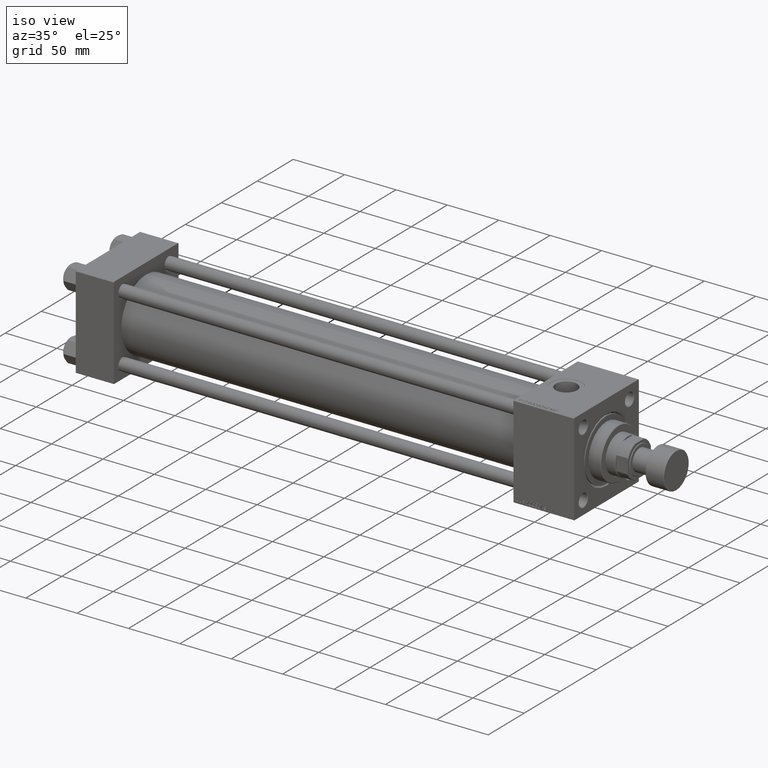
[diagram: clean part render]
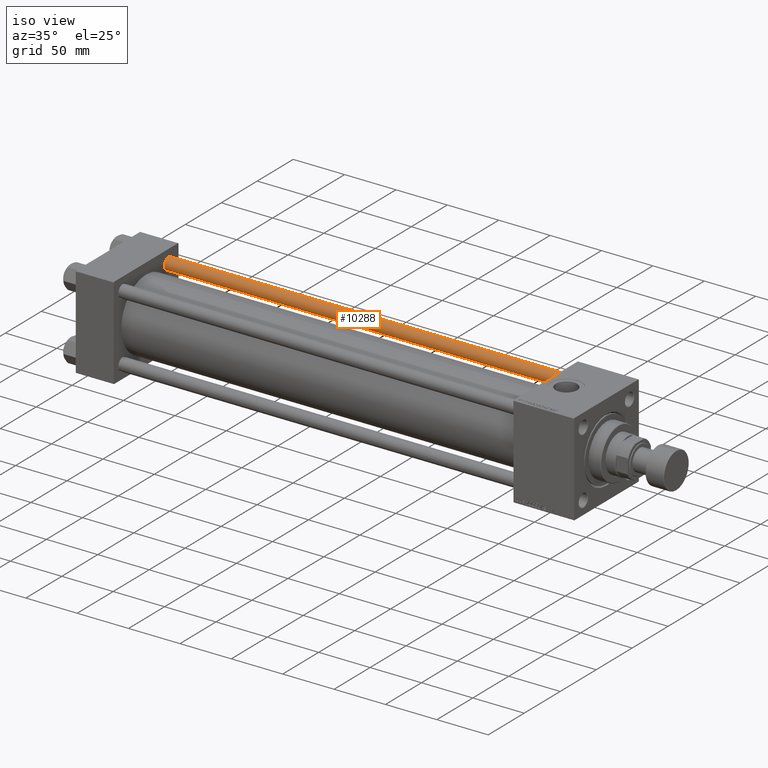
[diagram: same view with one face highlighted and labeled with its STEP entity id]
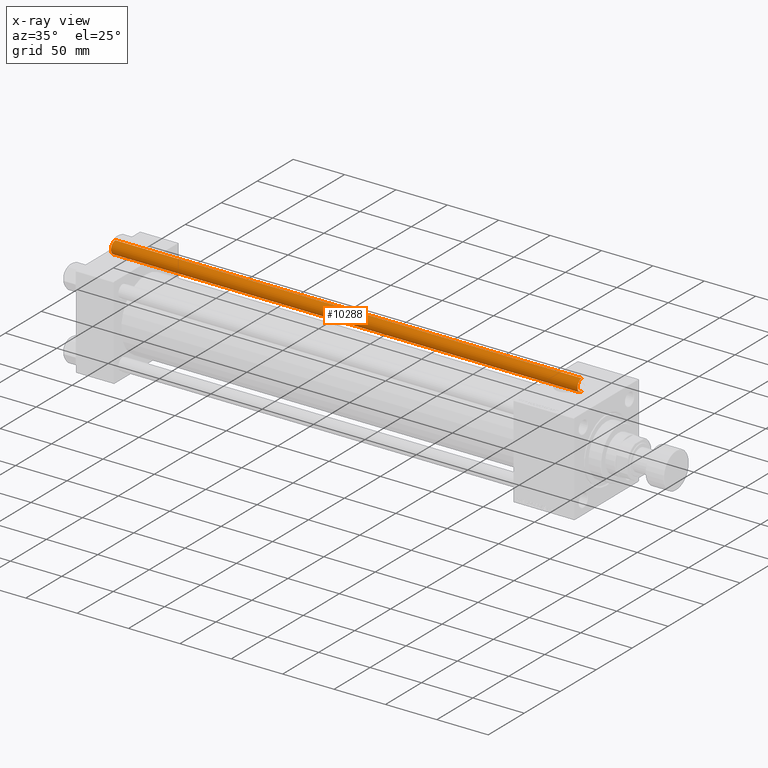
[diagram: x-ray of the same camera — body ghosted, the highlighted face saturated]
A machine part, iso view. The second image highlights one B-rep face of the part: STEP entity #10288.
The next image is the same camera in x-ray: the body ghosted, the highlighted face saturated — about 0% of this face is hidden behind the body in this view.
In plain terms, the highlighted cylindrical surface (edge-blend (fillet) strip) has radius 6 mm, axis along (-1, -0, 0).
Its self-contained STEP definition (entity closure, byte-faithful):
#2804 = AXIS2_PLACEMENT_3D ( 'NONE', #46323, #15072, #30674 ) ;
#3889 = ORIENTED_EDGE ( 'NONE', *, *, #31349, .T. ) ;
#4412 = AXIS2_PLACEMENT_3D ( 'NONE', #21966, #22221, #9441 ) ;
#7967 = LINE ( 'NONE', #46908, #24584 ) ;
#9441 = DIRECTION ( 'NONE',  ( -1.000000000000000000, 0.000000000000000000, 0.000000000000000000 ) ) ;
#10288 = ADVANCED_FACE ( 'NONE', ( #14288 ), #25541, .T. ) ;
#11223 = EDGE_CURVE ( 'NONE', #44910, #43445, #29784, .T. ) ;
#11507 = CIRCLE ( 'NONE', #22152, 6.000000000000000888 ) ;
#13945 = CARTESIAN_POINT ( 'NONE',  ( -6.000000000000000888, 0.000000000000000000, 454.5000000000002842 ) ) ;
#14288 = FACE_OUTER_BOUND ( 'NONE', #29366, .T. ) ;
#15072 = DIRECTION ( 'NONE',  ( 0.000000000000000000, 0.000000000000000000, -1.000000000000000000 ) ) ;
#17421 = LINE ( 'NONE', #33556, #36567 ) ;
#19491 = DIRECTION ( 'NONE',  ( -0.000000000000000000, -0.000000000000000000, -1.000000000000000000 ) ) ;
#21966 = CARTESIAN_POINT ( 'NONE',  ( 0.000000000000000000, 0.000000000000000000, 455.0000000000000000 ) ) ;
#22152 = AXIS2_PLACEMENT_3D ( 'NONE', #22577, #45894, #38201 ) ;
#22221 = DIRECTION ( 'NONE',  ( -0.000000000000000000, -0.000000000000000000, -1.000000000000000000 ) ) ;
#22577 = CARTESIAN_POINT ( 'NONE',  ( 0.000000000000000000, 0.000000000000000000, 0.5000000000002224887 ) ) ;
#24137 = CARTESIAN_POINT ( 'NONE',  ( -6.000000000000000888, 0.000000000000000000, 0.5000000000002224887 ) ) ;
#24584 = VECTOR ( 'NONE', #19491, 1000.000000000000000 ) ;
#25541 = CYLINDRICAL_SURFACE ( 'NONE', #4412, 6.000000000000000888 ) ;
#27363 = ORIENTED_EDGE ( 'NONE', *, *, #45413, .T. ) ;
#27666 = CARTESIAN_POINT ( 'NONE',  ( 6.000000000000000888, 7.347880794884119736E-16, 0.5000000000002224887 ) ) ;
#28099 = CARTESIAN_POINT ( 'NONE',  ( 6.000000000000000888, 7.347880794884119736E-16, 454.5000000000002842 ) ) ;
#29366 = EDGE_LOOP ( 'NONE', ( #31847, #33238, #3889, #27363 ) ) ;
#29784 = CIRCLE ( 'NONE', #2804, 6.000000000000000888 ) ;
#30674 = DIRECTION ( 'NONE',  ( 1.000000000000000000, 0.000000000000000000, 0.000000000000000000 ) ) ;
#31349 = EDGE_CURVE ( 'NONE', #43445, #46993, #17421, .T. ) ;
#31847 = ORIENTED_EDGE ( 'NONE', *, *, #45537, .F. ) ;
#33238 = ORIENTED_EDGE ( 'NONE', *, *, #11223, .T. ) ;
#33556 = CARTESIAN_POINT ( 'NONE',  ( -6.000000000000000888, 0.000000000000000000, 455.0000000000000000 ) ) ;
#36567 = VECTOR ( 'NONE', #44832, 1000.000000000000000 ) ;
#38201 = DIRECTION ( 'NONE',  ( 1.000000000000000000, 0.000000000000000000, 0.000000000000000000 ) ) ;
#43445 = VERTEX_POINT ( 'NONE', #13945 ) ;
#44832 = DIRECTION ( 'NONE',  ( -0.000000000000000000, -0.000000000000000000, -1.000000000000000000 ) ) ;
#44910 = VERTEX_POINT ( 'NONE', #28099 ) ;
#45413 = EDGE_CURVE ( 'NONE', #46993, #45587, #11507, .T. ) ;
#45537 = EDGE_CURVE ( 'NONE', #44910, #45587, #7967, .T. ) ;
#45587 = VERTEX_POINT ( 'NONE', #27666 ) ;
#45894 = DIRECTION ( 'NONE',  ( -0.000000000000000000, -0.000000000000000000, 1.000000000000000000 ) ) ;
#46323 = CARTESIAN_POINT ( 'NONE',  ( 0.000000000000000000, 0.000000000000000000, 454.5000000000002842 ) ) ;
#46908 = CARTESIAN_POINT ( 'NONE',  ( 6.000000000000000888, 7.347880794884119736E-16, 455.0000000000000000 ) ) ;
#46993 = VERTEX_POINT ( 'NONE', #24137 ) ;